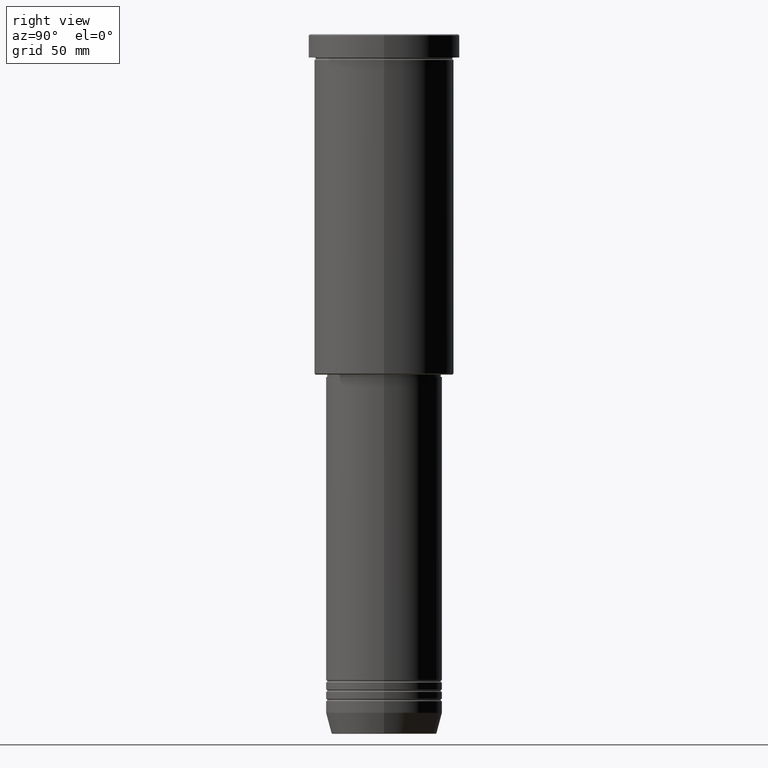
[diagram: clean part render]
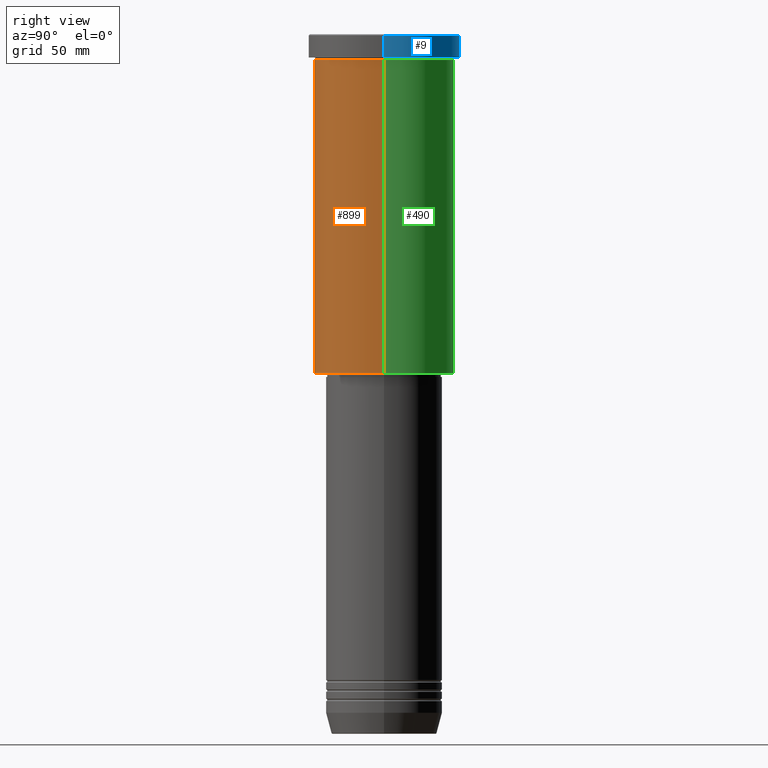
[diagram: same view with three faces highlighted in distinct colors, each labeled with its STEP entity id]
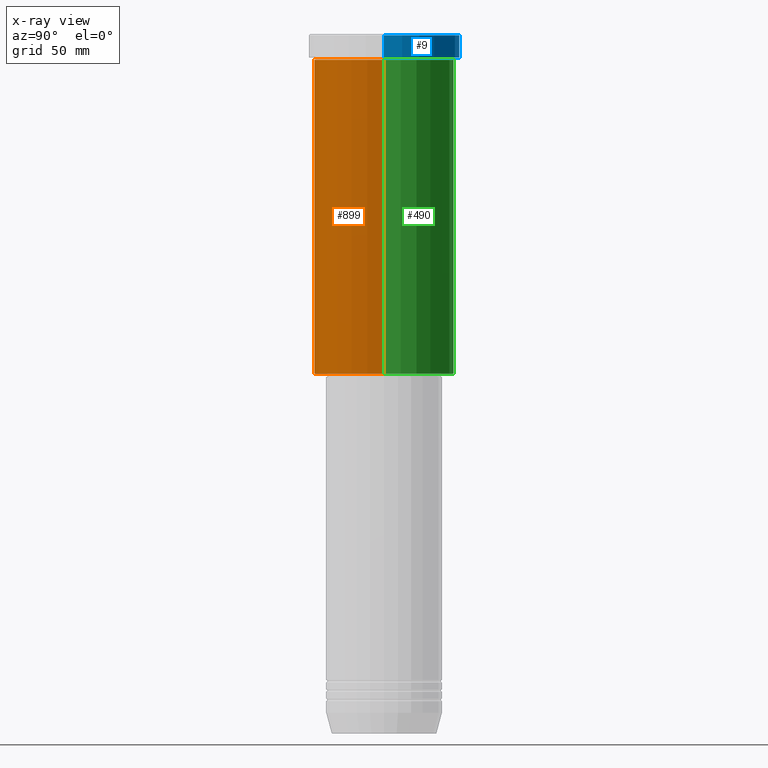
[diagram: x-ray of the same camera — body ghosted, the three highlighted faces saturated]
A machine part, right view with three faces highlighted in distinct colors.
The next image is the same camera in x-ray (body ghosted, the three faces saturated) — at least one of them is partly hidden behind the body in this view.
Their STEP definitions:

[orange] entity #899 — the highlighted cylindrical surface (partial cylindrical patch) has radius 30 mm, axis along (-0, -0, 1).
#29 = AXIS2_PLACEMENT_3D ( 'NONE', #999, #30, #562 ) ;
#30 = DIRECTION ( 'NONE',  ( -0.000000000000000000, -0.000000000000000000, 1.000000000000000000 ) ) ;
#56 = VERTEX_POINT ( 'NONE', #744 ) ;
#59 = VERTEX_POINT ( 'NONE', #1110 ) ;
#83 = DIRECTION ( 'NONE',  ( -0.000000000000000000, -0.000000000000000000, 1.000000000000000000 ) ) ;
#95 = CARTESIAN_POINT ( 'NONE',  ( 30.00000000000000000, 0.000000000000000000, -10.99999999999999289 ) ) ;
#135 = EDGE_LOOP ( 'NONE', ( #492, #154, #818, #861 ) ) ;
#154 = ORIENTED_EDGE ( 'NONE', *, *, #737, .T. ) ;
#172 = CARTESIAN_POINT ( 'NONE',  ( -30.00000000000000000, 3.673940397442059178E-15, 0.000000000000000000 ) ) ;
#188 = LINE ( 'NONE', #172, #851 ) ;
#295 = EDGE_CURVE ( 'NONE', #351, #1093, #1055, .T. ) ;
#318 = DIRECTION ( 'NONE',  ( -0.000000000000000000, -0.000000000000000000, 1.000000000000000000 ) ) ;
#345 = CARTESIAN_POINT ( 'NONE',  ( 0.000000000000000000, 0.000000000000000000, -145.5000000000000568 ) ) ;
#351 = VERTEX_POINT ( 'NONE', #416 ) ;
#411 = CYLINDRICAL_SURFACE ( 'NONE', #517, 30.00000000000000000 ) ;
#416 = CARTESIAN_POINT ( 'NONE',  ( -30.00000000000000000, 3.673940397442059178E-15, -10.99999999999999289 ) ) ;
#426 = DIRECTION ( 'NONE',  ( -0.000000000000000000, -0.000000000000000000, 1.000000000000000000 ) ) ;
#437 = AXIS2_PLACEMENT_3D ( 'NONE', #345, #318, #1164 ) ;
#492 = ORIENTED_EDGE ( 'NONE', *, *, #1091, .F. ) ;
#512 = EDGE_CURVE ( 'NONE', #59, #1093, #1169, .T. ) ;
#517 = AXIS2_PLACEMENT_3D ( 'NONE', #699, #426, #798 ) ;
#562 = DIRECTION ( 'NONE',  ( 1.000000000000000000, 0.000000000000000000, 0.000000000000000000 ) ) ;
#699 = CARTESIAN_POINT ( 'NONE',  ( 0.000000000000000000, 0.000000000000000000, 0.000000000000000000 ) ) ;
#706 = DIRECTION ( 'NONE',  ( -0.000000000000000000, -0.000000000000000000, 1.000000000000000000 ) ) ;
#737 = EDGE_CURVE ( 'NONE', #56, #59, #962, .T. ) ;
#744 = CARTESIAN_POINT ( 'NONE',  ( -30.00000000000000000, 3.673940397442059178E-15, -145.5000000000000568 ) ) ;
#798 = DIRECTION ( 'NONE',  ( 1.000000000000000000, 0.000000000000000000, 0.000000000000000000 ) ) ;
#799 = FACE_OUTER_BOUND ( 'NONE', #135, .T. ) ;
#818 = ORIENTED_EDGE ( 'NONE', *, *, #512, .T. ) ;
#846 = VECTOR ( 'NONE', #706, 1000.000000000000000 ) ;
#851 = VECTOR ( 'NONE', #83, 1000.000000000000000 ) ;
#861 = ORIENTED_EDGE ( 'NONE', *, *, #295, .F. ) ;
#899 = ADVANCED_FACE ( 'NONE', ( #799 ), #411, .T. ) ;
#962 = CIRCLE ( 'NONE', #437, 30.00000000000000000 ) ;
#999 = CARTESIAN_POINT ( 'NONE',  ( 0.000000000000000000, 0.000000000000000000, -10.99999999999999289 ) ) ;
#1055 = CIRCLE ( 'NONE', #29, 30.00000000000000000 ) ;
#1091 = EDGE_CURVE ( 'NONE', #56, #351, #188, .T. ) ;
#1093 = VERTEX_POINT ( 'NONE', #95 ) ;
#1110 = CARTESIAN_POINT ( 'NONE',  ( 30.00000000000000000, 0.000000000000000000, -145.5000000000000568 ) ) ;
#1163 = CARTESIAN_POINT ( 'NONE',  ( 30.00000000000000000, 0.000000000000000000, 0.000000000000000000 ) ) ;
#1164 = DIRECTION ( 'NONE',  ( -1.000000000000000000, 0.000000000000000000, 0.000000000000000000 ) ) ;
#1169 = LINE ( 'NONE', #1163, #846 ) ;

[blue] entity #9 — the highlighted cylindrical surface (partial cylindrical patch) has radius 32.5 mm, axis along (-0, -0, 1).
#9 = ADVANCED_FACE ( 'NONE', ( #660 ), #47, .T. ) ;
#31 = VECTOR ( 'NONE', #618, 1000.000000000000000 ) ;
#47 = CYLINDRICAL_SURFACE ( 'NONE', #692, 32.50000000000000000 ) ;
#49 = CARTESIAN_POINT ( 'NONE',  ( 32.50000000000000000, 0.000000000000000000, -9.999999999999992895 ) ) ;
#148 = LINE ( 'NONE', #715, #31 ) ;
#161 = EDGE_LOOP ( 'NONE', ( #371, #905, #623, #432 ) ) ;
#240 = DIRECTION ( 'NONE',  ( 1.000000000000000000, 0.000000000000000000, 0.000000000000000000 ) ) ;
#330 = CARTESIAN_POINT ( 'NONE',  ( 32.50000000000000000, 0.000000000000000000, -0.5000000000000004441 ) ) ;
#371 = ORIENTED_EDGE ( 'NONE', *, *, #525, .T. ) ;
#432 = ORIENTED_EDGE ( 'NONE', *, *, #498, .F. ) ;
#455 = AXIS2_PLACEMENT_3D ( 'NONE', #793, #724, #240 ) ;
#456 = CIRCLE ( 'NONE', #1021, 32.50000000000000000 ) ;
#498 = EDGE_CURVE ( 'NONE', #1147, #665, #148, .T. ) ;
#510 = DIRECTION ( 'NONE',  ( 1.000000000000000000, 0.000000000000000000, 0.000000000000000000 ) ) ;
#525 = EDGE_CURVE ( 'NONE', #1147, #697, #788, .T. ) ;
#579 = LINE ( 'NONE', #752, #1003 ) ;
#618 = DIRECTION ( 'NONE',  ( -0.000000000000000000, -0.000000000000000000, 1.000000000000000000 ) ) ;
#623 = ORIENTED_EDGE ( 'NONE', *, *, #664, .T. ) ;
#650 = DIRECTION ( 'NONE',  ( -0.000000000000000000, -0.000000000000000000, 1.000000000000000000 ) ) ;
#660 = FACE_OUTER_BOUND ( 'NONE', #161, .T. ) ;
#664 = EDGE_CURVE ( 'NONE', #832, #665, #456, .T. ) ;
#665 = VERTEX_POINT ( 'NONE', #330 ) ;
#692 = AXIS2_PLACEMENT_3D ( 'NONE', #1031, #1047, #840 ) ;
#697 = VERTEX_POINT ( 'NONE', #902 ) ;
#700 = DIRECTION ( 'NONE',  ( 0.000000000000000000, 0.000000000000000000, -1.000000000000000000 ) ) ;
#715 = CARTESIAN_POINT ( 'NONE',  ( 32.50000000000000000, 0.000000000000000000, 0.000000000000000000 ) ) ;
#724 = DIRECTION ( 'NONE',  ( -0.000000000000000000, -0.000000000000000000, 1.000000000000000000 ) ) ;
#752 = CARTESIAN_POINT ( 'NONE',  ( -32.50000000000000000, 3.980102097228898626E-15, 0.000000000000000000 ) ) ;
#788 = CIRCLE ( 'NONE', #455, 32.50000000000000000 ) ;
#793 = CARTESIAN_POINT ( 'NONE',  ( 0.000000000000000000, 0.000000000000000000, -9.999999999999992895 ) ) ;
#832 = VERTEX_POINT ( 'NONE', #1048 ) ;
#840 = DIRECTION ( 'NONE',  ( 1.000000000000000000, 0.000000000000000000, 0.000000000000000000 ) ) ;
#902 = CARTESIAN_POINT ( 'NONE',  ( -32.50000000000000000, 3.980102097228898626E-15, -9.999999999999992895 ) ) ;
#905 = ORIENTED_EDGE ( 'NONE', *, *, #1172, .T. ) ;
#1003 = VECTOR ( 'NONE', #650, 1000.000000000000000 ) ;
#1021 = AXIS2_PLACEMENT_3D ( 'NONE', #1160, #700, #510 ) ;
#1031 = CARTESIAN_POINT ( 'NONE',  ( 0.000000000000000000, 0.000000000000000000, 0.000000000000000000 ) ) ;
#1047 = DIRECTION ( 'NONE',  ( -0.000000000000000000, -0.000000000000000000, 1.000000000000000000 ) ) ;
#1048 = CARTESIAN_POINT ( 'NONE',  ( -32.50000000000000000, 3.980102097228898626E-15, -0.5000000000000004441 ) ) ;
#1147 = VERTEX_POINT ( 'NONE', #49 ) ;
#1160 = CARTESIAN_POINT ( 'NONE',  ( 0.000000000000000000, 0.000000000000000000, -0.5000000000000004441 ) ) ;
#1172 = EDGE_CURVE ( 'NONE', #697, #832, #579, .T. ) ;

[green] entity #490 — the highlighted cylindrical surface (partial cylindrical patch) has radius 30 mm, axis along (-0, -0, 1).
#56 = VERTEX_POINT ( 'NONE', #744 ) ;
#59 = VERTEX_POINT ( 'NONE', #1110 ) ;
#67 = CARTESIAN_POINT ( 'NONE',  ( 0.000000000000000000, 0.000000000000000000, 0.000000000000000000 ) ) ;
#75 = DIRECTION ( 'NONE',  ( 1.000000000000000000, 0.000000000000000000, 0.000000000000000000 ) ) ;
#83 = DIRECTION ( 'NONE',  ( -0.000000000000000000, -0.000000000000000000, 1.000000000000000000 ) ) ;
#95 = CARTESIAN_POINT ( 'NONE',  ( 30.00000000000000000, 0.000000000000000000, -10.99999999999999289 ) ) ;
#164 = FACE_OUTER_BOUND ( 'NONE', #197, .T. ) ;
#172 = CARTESIAN_POINT ( 'NONE',  ( -30.00000000000000000, 3.673940397442059178E-15, 0.000000000000000000 ) ) ;
#188 = LINE ( 'NONE', #172, #851 ) ;
#197 = EDGE_LOOP ( 'NONE', ( #980, #1136, #462, #812 ) ) ;
#206 = DIRECTION ( 'NONE',  ( -1.000000000000000000, 0.000000000000000000, 0.000000000000000000 ) ) ;
#333 = DIRECTION ( 'NONE',  ( -0.000000000000000000, -0.000000000000000000, 1.000000000000000000 ) ) ;
#351 = VERTEX_POINT ( 'NONE', #416 ) ;
#363 = DIRECTION ( 'NONE',  ( -0.000000000000000000, -0.000000000000000000, 1.000000000000000000 ) ) ;
#366 = CIRCLE ( 'NONE', #1116, 30.00000000000000000 ) ;
#381 = AXIS2_PLACEMENT_3D ( 'NONE', #67, #333, #75 ) ;
#386 = EDGE_CURVE ( 'NONE', #1093, #351, #366, .T. ) ;
#399 = AXIS2_PLACEMENT_3D ( 'NONE', #643, #661, #206 ) ;
#416 = CARTESIAN_POINT ( 'NONE',  ( -30.00000000000000000, 3.673940397442059178E-15, -10.99999999999999289 ) ) ;
#445 = EDGE_CURVE ( 'NONE', #59, #56, #516, .T. ) ;
#451 = DIRECTION ( 'NONE',  ( 1.000000000000000000, 0.000000000000000000, 0.000000000000000000 ) ) ;
#462 = ORIENTED_EDGE ( 'NONE', *, *, #386, .F. ) ;
#490 = ADVANCED_FACE ( 'NONE', ( #164 ), #806, .T. ) ;
#512 = EDGE_CURVE ( 'NONE', #59, #1093, #1169, .T. ) ;
#516 = CIRCLE ( 'NONE', #399, 30.00000000000000000 ) ;
#643 = CARTESIAN_POINT ( 'NONE',  ( 0.000000000000000000, 0.000000000000000000, -145.5000000000000568 ) ) ;
#661 = DIRECTION ( 'NONE',  ( -0.000000000000000000, -0.000000000000000000, 1.000000000000000000 ) ) ;
#706 = DIRECTION ( 'NONE',  ( -0.000000000000000000, -0.000000000000000000, 1.000000000000000000 ) ) ;
#744 = CARTESIAN_POINT ( 'NONE',  ( -30.00000000000000000, 3.673940397442059178E-15, -145.5000000000000568 ) ) ;
#806 = CYLINDRICAL_SURFACE ( 'NONE', #381, 30.00000000000000000 ) ;
#812 = ORIENTED_EDGE ( 'NONE', *, *, #512, .F. ) ;
#846 = VECTOR ( 'NONE', #706, 1000.000000000000000 ) ;
#851 = VECTOR ( 'NONE', #83, 1000.000000000000000 ) ;
#897 = CARTESIAN_POINT ( 'NONE',  ( 0.000000000000000000, 0.000000000000000000, -10.99999999999999289 ) ) ;
#980 = ORIENTED_EDGE ( 'NONE', *, *, #445, .T. ) ;
#1091 = EDGE_CURVE ( 'NONE', #56, #351, #188, .T. ) ;
#1093 = VERTEX_POINT ( 'NONE', #95 ) ;
#1110 = CARTESIAN_POINT ( 'NONE',  ( 30.00000000000000000, 0.000000000000000000, -145.5000000000000568 ) ) ;
#1116 = AXIS2_PLACEMENT_3D ( 'NONE', #897, #363, #451 ) ;
#1136 = ORIENTED_EDGE ( 'NONE', *, *, #1091, .T. ) ;
#1163 = CARTESIAN_POINT ( 'NONE',  ( 30.00000000000000000, 0.000000000000000000, 0.000000000000000000 ) ) ;
#1169 = LINE ( 'NONE', #1163, #846 ) ;